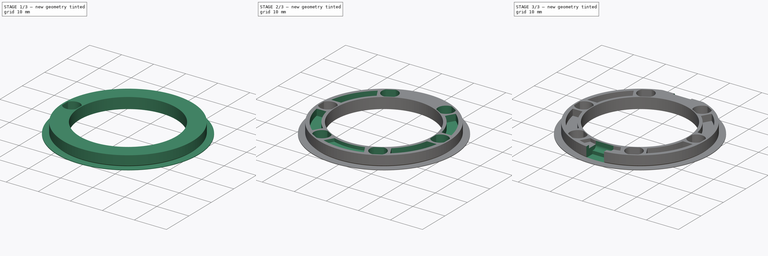
[diagram: build sequence overview — one tinted view per stage of 3, left to right]
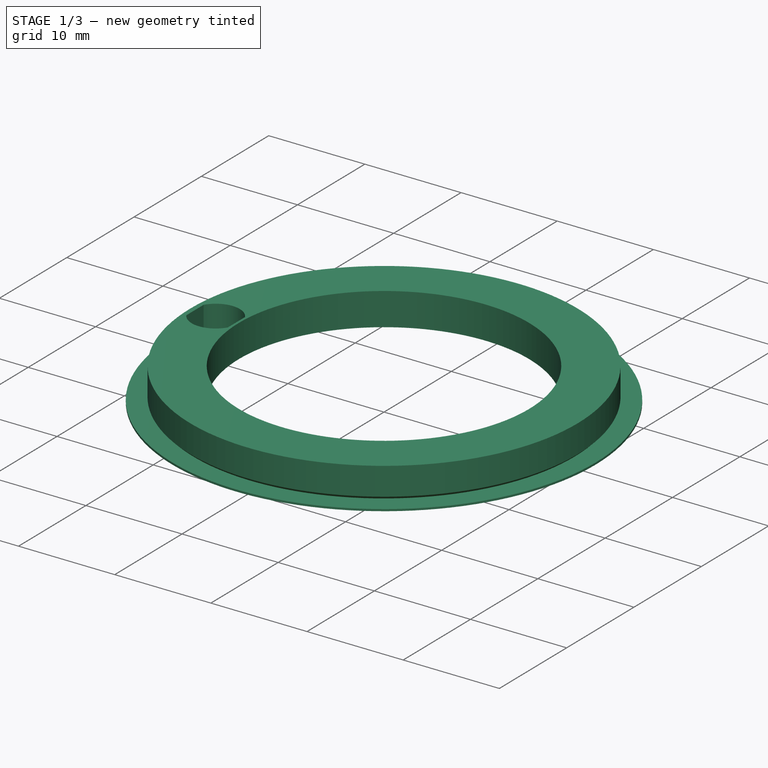
[diagram: stage 1 of 3 — iso view after this stage's code; geometry added in this stage tinted green]
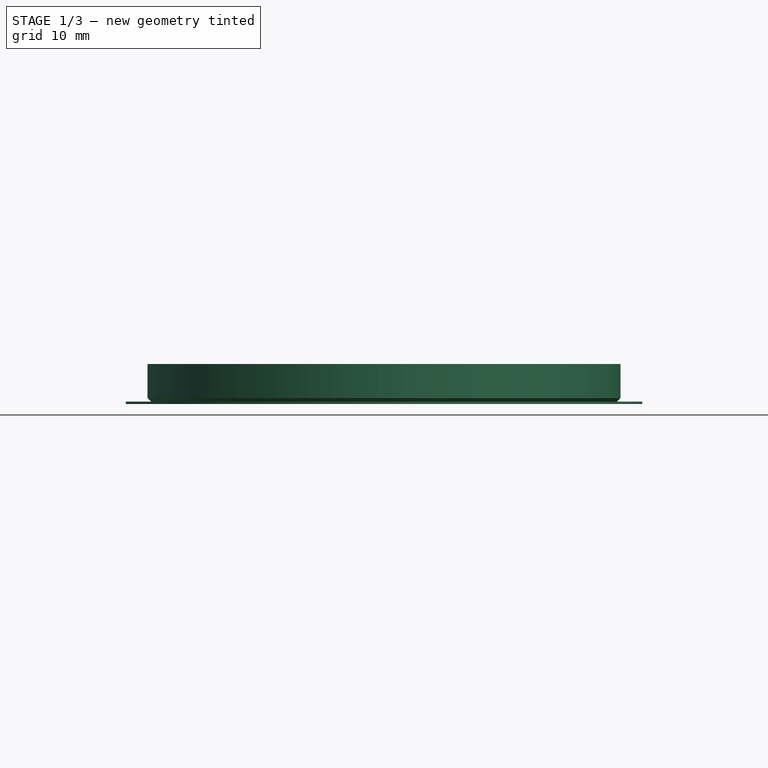
[diagram: stage 1 of 3 — front view after this stage's code; geometry added in this stage tinted green]
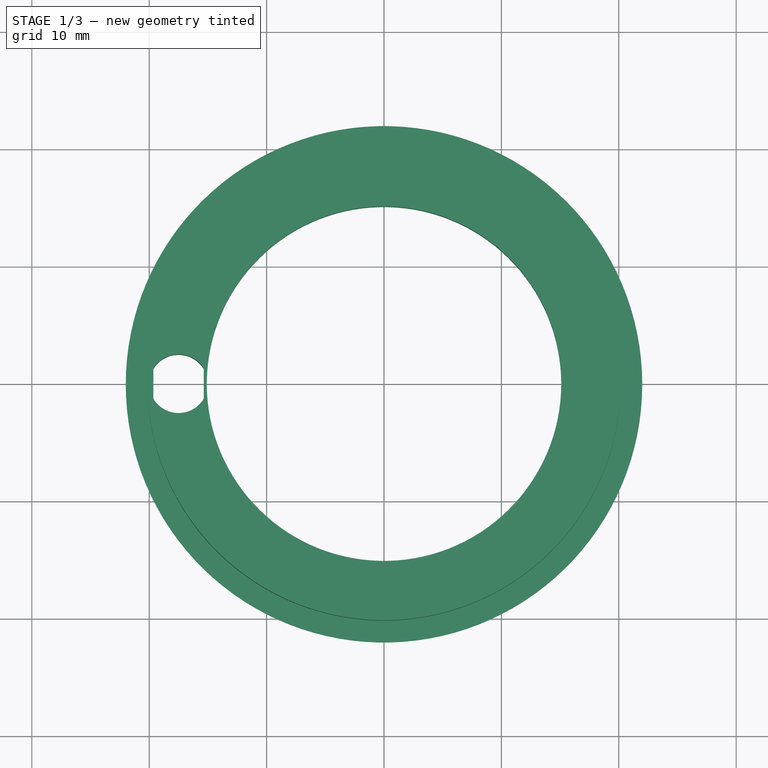
[diagram: stage 1 of 3 — top view after this stage's code; geometry added in this stage tinted green]
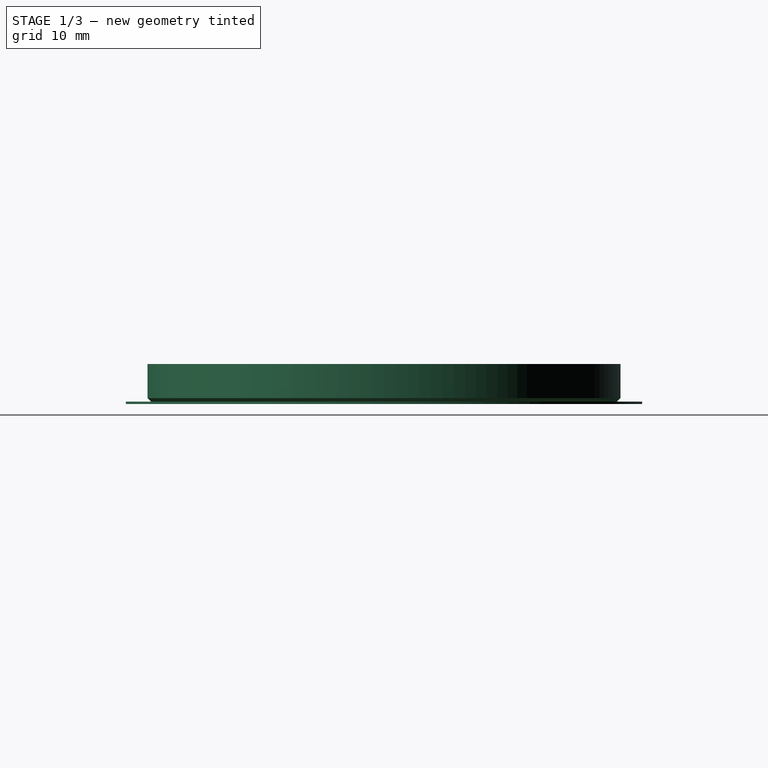
[diagram: stage 1 of 3 — right view after this stage's code; geometry added in this stage tinted green]
FCSTD DOCUMENT  (FreeCAD 0.22R37841 (Git))
Label: rotorbase
License: All rights reserved
LicenseURL: http://en.wikipedia.org/wiki/All_rights_reserved
objects: Sketcher::SketchObject×6, PartDesign::Pocket×5, PartDesign::CoordinateSystem×2, PartDesign::Revolution×1, PartDesign::PolarPattern×1, PartDesign::Body×1, App::Part×1
note: 22 computed .brp shape members not serialized (recipe doc carries the construction recipe); baked Part::Feature solids carry a one-line shape summary decoded from their .brp

FEATURE [PartDesign::CoordinateSystem] LCS_Origin
  AttacherType = Attacher::AttachEngine3D
  AttachmentSupport = -> [X_Axis]
  MapMode = 2
FEATURE [PartDesign::CoordinateSystem] LCS_Origin001
  AttacherType = Attacher::AttachEngine3D
  AttachmentSupport = -> [X_Axis001]
  MapMode = 2
FEATURE [Sketcher::SketchObject] Sketch
  AttachmentSupport = -> [XZ_Plane001]
  FullyConstrained = true
  MapMode = 5
  Placement = pos=(0,0,0) rot=(1,0,0;1.5708rad)
  sketch-geometry (8):
    g0: LineSegment StartX=0 StartY=0 StartZ=0 EndX=0 EndY=8.7 EndZ=0
    g1: LineSegment StartX=19.85 StartY=5.5 StartZ=0 EndX=22 EndY=5.5 EndZ=0
    g2: LineSegment StartX=22 StartY=5.5 StartZ=0 EndX=22 EndY=5.3 EndZ=0
    g3: LineSegment StartX=19.85 StartY=5.5 StartZ=0 EndX=20.15 EndY=5.8 EndZ=0
    g4: LineSegment StartX=20.15 StartY=8.7 StartZ=0 EndX=20.15 EndY=5.8 EndZ=0
    g5: LineSegment StartX=15.1 StartY=8.7 StartZ=0 EndX=15.1 EndY=5.3 EndZ=0
    g6: LineSegment StartX=15.1 StartY=5.3 StartZ=0 EndX=22 EndY=5.3 EndZ=0
    g7: LineSegment StartX=15.1 StartY=8.7 StartZ=0 EndX=20.15 EndY=8.7 EndZ=0
  constraints (24):
    c: Coincident(g0,g-1)
    c: PointOnObject(g0,g-2)
    c: Horizontal(g1)
    c: Coincident(g2,g1)
    c: Vertical(g2)
    c: Coincident(g3,g1)
    c: Vertical(g4)
    c: Vertical(g5)
    c: Coincident(g6,g5)
    c: Coincident(g6,g2)
    c: Horizontal(g6)
    c: Coincident(g7,g4)
    c: Horizontal(g7)
    c: DistanceX(g-1,g5) = 15.1
    c: Coincident(g3,g4)
    c: DistanceX(g-1,g3) = 20.15
    c: DistanceX(g-1,g1) = 19.85
    c: Angle(g1,g3) = 0.785398
    c: DistanceY(g-1,g1) = 5.5
    c: DistanceY(g-1,g2) = 5.3
    c: DistanceX(g-1,g2) = 22
    c: DistanceY(g1,g4) = 3.2
    c: Coincident(g7,g5)
    c: PointOnObject(g0,g7)
FEATURE [PartDesign::Revolution] Revolution
  Angle = 360
  Angle2 = 60
  Axis = (0,2e-16,1)
  Base = (0,0,0)
  Placement = pos=(0,0,0) rot=(1,0,0;1.5708rad)
  Profile = -> Sketch
  ReferenceAxis = -> Sketch [V_Axis]
  Reversed = true
  Suppressed = false
  Type = 0
FEATURE [Sketcher::SketchObject] Sketch001
  AttachmentOffset = pos=(0,0,5.3) rot=(0,0,1;0rad)
  AttachmentSupport = -> [XY_Plane001]
  FullyConstrained = true
  MapMode = 5
  Placement = pos=(0,0,5.3) rot=(0,0,1;0rad)
  sketch-geometry (5):
    g0: Circle CenterX=0 CenterY=0 CenterZ=0 NormalX=0 NormalY=0 NormalZ=1 AngleXU=0 Radius=17.5
    g1: ArcOfCircle CenterX=-17.5 CenterY=0 CenterZ=0 NormalX=0 NormalY=0 NormalZ=1 AngleXU=0 Radius=2.5 StartAngle=0.535527 EndAngle=2.60607
    g2: LineSegment StartX=-19.65 StartY=1.27574 StartZ=0 EndX=-19.65 EndY=-1.27574 EndZ=0
    g3: LineSegment StartX=-15.35 StartY=-1.27574 StartZ=0 EndX=-15.35 EndY=1.27574 EndZ=0
    g4: ArcOfCircle CenterX=-17.5 CenterY=0 CenterZ=0 NormalX=0 NormalY=0 NormalZ=1 AngleXU=0 Radius=2.5 StartAngle=3.67712 EndAngle=5.74766
  constraints (16):
    c: PointOnObject(g1,g0)
    c: PointOnObject(g1,g-1)
    c: Diameter(g0) = 35
    c: Vertical(g2)
    c: Vertical(g3)
    c: Horizontal(g2,g3)
    c: DistanceX(g2,g3) = 4.3
    c: Coincident(g4,g3)
    c: Coincident(g1,g3)
    c: Equal(g1,g4)
    c: Coincident(g1,g2)
    c: Coincident(g4,g2)
    c: Coincident(g1,g4)
    c: Radius(g1) = 2.5
    c: Coincident(g-1,g0)
    c: Distance(g-2,g3) = 15.35
FEATURE [PartDesign::Pocket] Pocket
  BaseFeature = -> Revolution
  Direction = (0,0,-1)
  Length = 5.5
  Length2 = 5
  Placement = pos=(0,0,0) rot=(1,0,0;1.5708rad)
  Profile = -> Sketch001
  ReferenceAxis = -> Sketch001 [N_Axis]
  Reversed = true
  Suppressed = false
  Type = 1
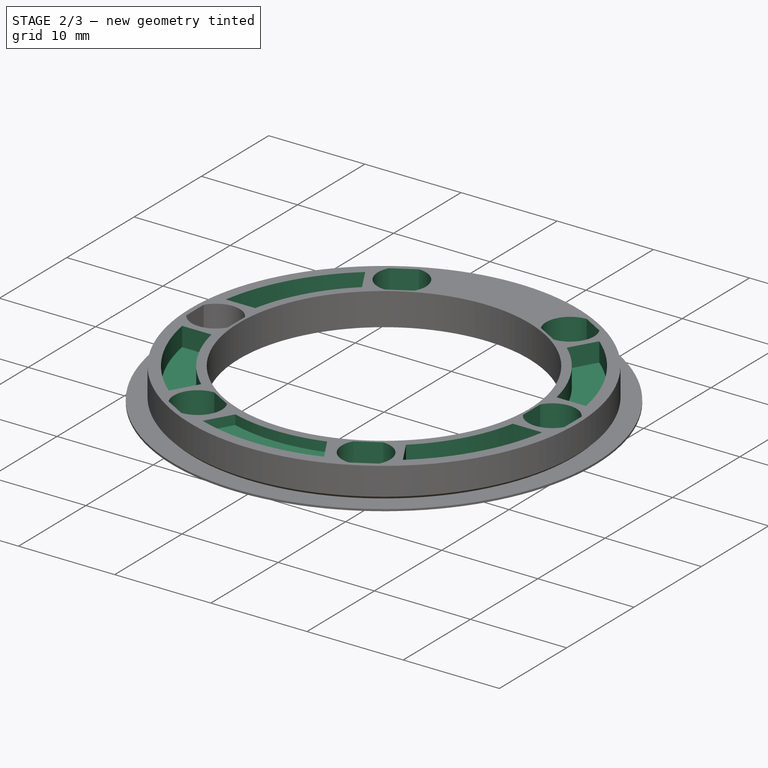
[diagram: stage 2 of 3 — iso view after this stage's code; geometry added in this stage tinted green]
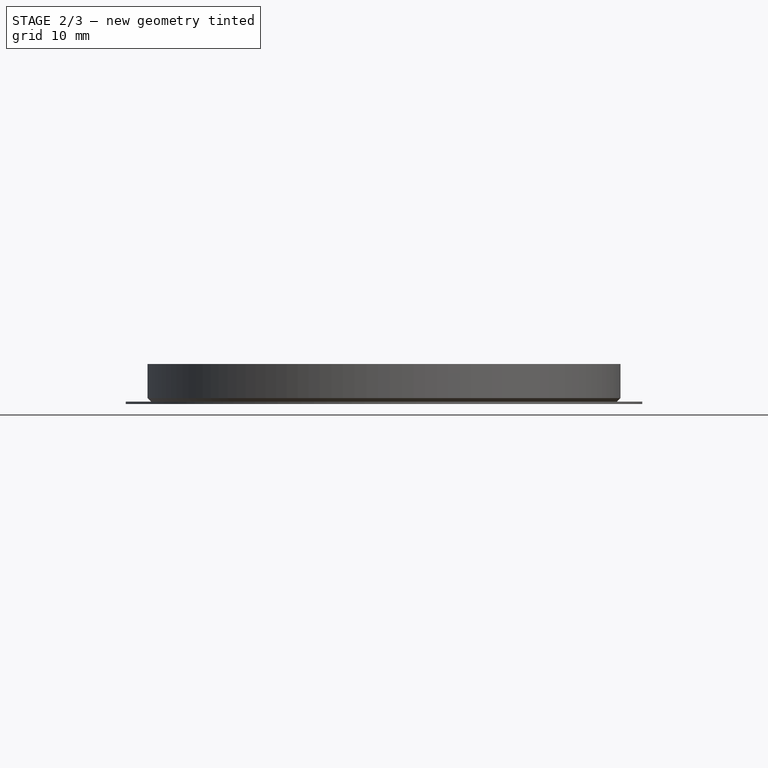
[diagram: stage 2 of 3 — front view after this stage's code; geometry added in this stage tinted green]
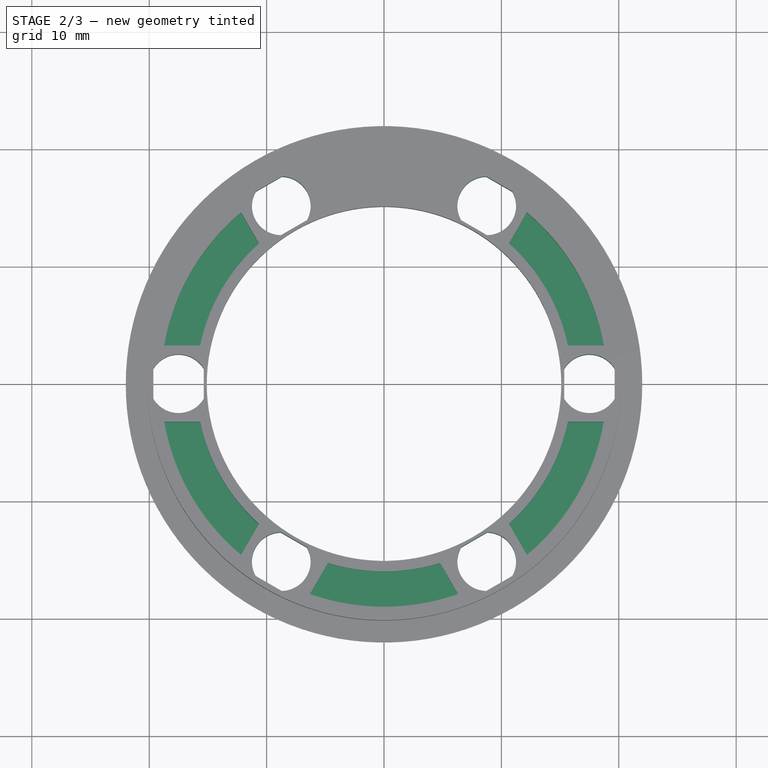
[diagram: stage 2 of 3 — top view after this stage's code; geometry added in this stage tinted green]
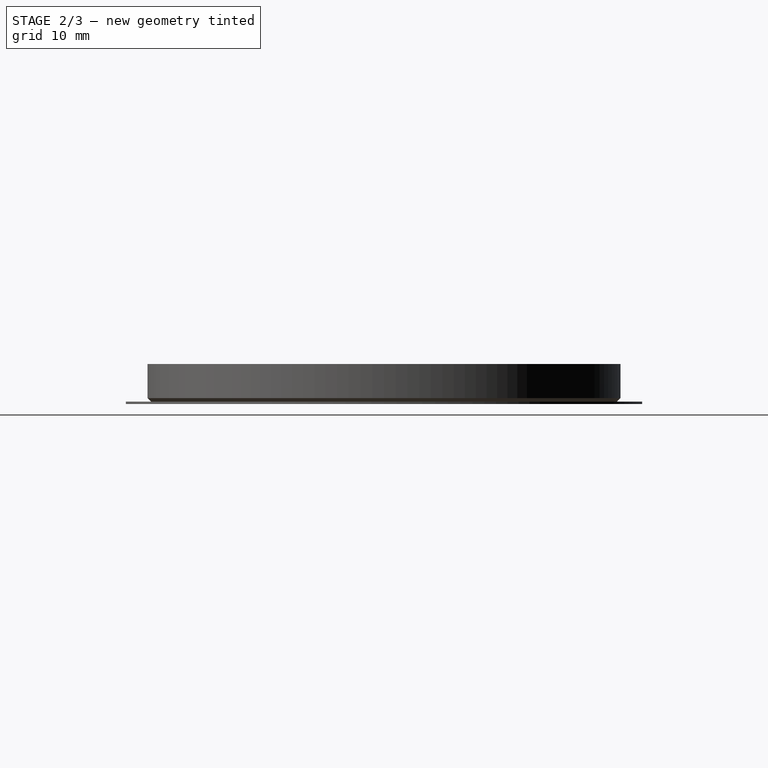
[diagram: stage 2 of 3 — right view after this stage's code; geometry added in this stage tinted green]
FEATURE [PartDesign::PolarPattern] PolarPattern
  Angle = 360
  Axis = -> Z_Axis001
  BaseFeature = -> Pocket
  Mode = 0
  Occurrences = 6
  Offset = 120
  Originals = -> [Pocket]
  Placement = pos=(0,0,0) rot=(1,0,0;1.5708rad)
  Suppressed = false
  TransformMode = 0
FEATURE [Sketcher::SketchObject] Sketch004
  AttachmentSupport = -> [YZ_Plane001]
  FullyConstrained = true
  MapMode = 5
  Placement = pos=(0,0,0) rot=(0.57735,0.57735,0.57735;2.0944rad)
  sketch-geometry (15):
    g0: LineSegment StartX=21 StartY=11 StartZ=0 EndX=18.5 EndY=11 EndZ=0
    g1: LineSegment StartX=19.25 StartY=5.5 StartZ=0 EndX=21 EndY=5.5 EndZ=0
    g2: LineSegment StartX=21 StartY=5.5 StartZ=0 EndX=21 EndY=11 EndZ=0
    g3: LineSegment StartX=18.5 StartY=11 StartZ=0 EndX=18.5 EndY=8.7 EndZ=0
    g4: ArcOfCircle CenterX=18.5 CenterY=8.2 CenterZ=0 NormalX=0 NormalY=0 NormalZ=1 AngleXU=0 Radius=0.5 StartAngle=5.17283 EndAngle=7.85398
    g5: LineSegment StartX=-20.75 StartY=11 StartZ=0 EndX=-20.75 EndY=5.5 EndZ=0
    g6: LineSegment StartX=-20.75 StartY=5.5 StartZ=0 EndX=-19 EndY=5.5 EndZ=0
    g7: LineSegment StartX=-19 StartY=5.5 StartZ=0 EndX=-17.25 EndY=5.5 EndZ=0
    g8: LineSegment StartX=-17.25 StartY=5.5 StartZ=0 EndX=-17.25 EndY=6.5 EndZ=0
    g9: LineSegment StartX=-17.25 StartY=6.5 StartZ=0 EndX=-16.75 EndY=6.5 EndZ=0
    g10: LineSegment StartX=-15.75 StartY=7.5 StartZ=0 EndX=-15.75 EndY=11 EndZ=0
    g11: ArcOfCircle CenterX=-16.75 CenterY=7.5 CenterZ=0 NormalX=0 NormalY=0 NormalZ=1 AngleXU=0 Radius=1 StartAngle=4.71239 EndAngle=6.28319
    g12: GeomPoint X=-15.75 Y=6.5 Z=0
    g13: LineSegment StartX=-20.75 StartY=11 StartZ=0 EndX=-15.75 EndY=11 EndZ=0
    g14: ArcOfCircle CenterX=19.25 CenterY=6.68789 CenterZ=0 NormalX=0 NormalY=0 NormalZ=1 AngleXU=0 Radius=1.18789 StartAngle=2.03124 EndAngle=4.71239
  constraints (43):
    c: Coincident(g1,g2)
    c: Coincident(g2,g0)
    c: Horizontal(g0)
    c: Horizontal(g1)
    c: Vertical(g2)
    c: DistanceX(g-1,g1) = 21
    c: DistanceY(g-1,g1) = 5.5
    c: DistanceY(g2,g2) = 5.5
    c: Coincident(g3,g0)
    c: Vertical(g3)
    c: Coincident(g4,g3)
    c: PointOnObject(g4,g3)
    c: Radius(g4) = 0.5
    c: Vertical(g5)
    c: Coincident(g6,g5)
    c: Horizontal(g6)
    c: Horizontal(g7)
    c: Coincident(g8,g7)
    c: Coincident(g9,g8)
    c: Horizontal(g9)
    c: Vertical(g10)
    c: Vertical(g8)
    c: PointOnObject(g12,g10)
    c: PointOnObject(g12,g9)
    c: Tangent(g10,g11) = -1.5708
    c: Tangent(g9,g11) = -1.5708
    c: Coincident(g7,g6)
    c: Equal(g6,g7)
    c: DistanceX(g6,g-1) = 19
    c: DistanceX(g10,g-1) = 15.75
    c: Horizontal(g10,g0)
    c: Horizontal(g5,g1)
    c: DistanceY(g8,g8) = 1
    c: Coincident(g13,g10)
    c: Horizontal(g13)
    c: DistanceX(g-1,g1) = 19.25
    c: Tangent(g14,g1) = -1.5708
    c: DistanceY(g-1,g3) = 8.7
    c: Tangent(g4,g14) = 1.5708
    c: DistanceX(g-1,g3) = 18.5
    c: DistanceX(g5,g7) = 3.5
    c: Radius(g11) = 1
    c: Coincident(g13,g5)
FEATURE [Sketcher::SketchObject] Sketch005
  AttachmentOffset = pos=(0,0,7.7) rot=(0,0,1;0rad)
  AttachmentSupport = -> [XY_Plane001]
  FullyConstrained = true
  MapMode = 5
  Placement = pos=(0,0,7.7) rot=(0,0,1;0rad)
  sketch-geometry (5):
    g0: ArcOfCircle CenterX=0 CenterY=0 CenterZ=0 NormalX=0 NormalY=0 NormalZ=1 AngleXU=0 Radius=16 StartAngle=4.40932 EndAngle=5.01545
    g1: ArcOfCircle CenterX=0 CenterY=0 CenterZ=0 NormalX=0 NormalY=0 NormalZ=1 AngleXU=0 Radius=19 StartAngle=4.37406 EndAngle=5.05072
    g2: LineSegment StartX=-6.30634 StartY=-17.9229 StartZ=0 EndX=-4.77516 EndY=-15.2708 EndZ=0
    g3: LineSegment StartX=4.77516 StartY=-15.2708 StartZ=0 EndX=6.30634 EndY=-17.9229 EndZ=0
    g4: LineSegment StartX=0 StartY=0 StartZ=0 EndX=-9.5 EndY=-16.4545 EndZ=0
  constraints (15):
    c: Coincident(g0,g-1)
    c: Coincident(g1,g0)
    c: Coincident(g2,g1)
    c: Coincident(g2,g0)
    c: Coincident(g3,g0)
    c: Coincident(g3,g1)
    c: Radius(g0) = 16
    c: Radius(g1) = 19
    c: Horizontal(g0,g0)
    c: Horizontal(g1,g1)
    c: Coincident(g4,g0)
    c: PointOnObject(g4,g1)
    c: Angle(g-1,g4) = 1.0472
    c: Parallel(g2,g4)
    c: Distance(g4,g2) = 3.5
FEATURE [PartDesign::Pocket] Pocket004
  BaseFeature = -> PolarPattern
  Direction = (0,0,-1)
  Length = 5
  Length2 = 5
  Placement = pos=(0,0,0) rot=(1,0,0;1.5708rad)
  Profile = -> Sketch005
  ReferenceAxis = -> Sketch005 [N_Axis]
  Reversed = true
  Suppressed = false
  Type = 1
FEATURE [Sketcher::SketchObject] Sketch006
  AttachmentOffset = pos=(0,0,6.7) rot=(0,0,1;0rad)
  AttachmentSupport = -> [XY_Plane001]
  FullyConstrained = true
  MapMode = 5
  Placement = pos=(0,0,6.7) rot=(0,0,1;0rad)
  sketch-geometry (19):
    g0: ArcOfCircle CenterX=0 CenterY=0 CenterZ=0 NormalX=0 NormalY=0 NormalZ=1 AngleXU=0 Radius=16 StartAngle=2.29894 EndAngle=2.93704
    g1: ArcOfCircle CenterX=0 CenterY=0 CenterZ=0 NormalX=0 NormalY=0 NormalZ=1 AngleXU=0 Radius=16 StartAngle=3.34614 EndAngle=3.98424
    g2: ArcOfCircle CenterX=0 CenterY=0 CenterZ=0 NormalX=0 NormalY=0 NormalZ=1 AngleXU=0 Radius=19 StartAngle=2.26629 EndAngle=2.96969
    g3: ArcOfCircle CenterX=0 CenterY=0 CenterZ=0 NormalX=0 NormalY=0 NormalZ=1 AngleXU=0 Radius=19 StartAngle=3.31349 EndAngle=4.01689
    g4: Circle CenterX=0 CenterY=0 CenterZ=0 NormalX=0 NormalY=0 NormalZ=1 AngleXU=0 Radius=19
    g5: Circle CenterX=0 CenterY=0 CenterZ=0 NormalX=0 NormalY=0 NormalZ=1 AngleXU=0 Radius=16
    g6: LineSegment StartX=0 StartY=0 StartZ=0 EndX=-9.5 EndY=16.4545 EndZ=0
    g7: LineSegment StartX=-12.1746 StartY=14.587 StartZ=0 EndX=-10.6478 EndY=11.9425 EndZ=0
    g8: LineSegment StartX=-15.6664 StartY=3.25 StartZ=0 EndX=-18.72 EndY=3.25 EndZ=0
    g9: LineSegment StartX=-18.72 StartY=-3.25 StartZ=0 EndX=-15.6664 EndY=-3.25 EndZ=0
    g10: LineSegment StartX=-12.1746 StartY=-14.587 StartZ=0 EndX=-10.6478 EndY=-11.9425 EndZ=0
    g11: ArcOfCircle CenterX=0 CenterY=0 CenterZ=0 NormalX=0 NormalY=0 NormalZ=1 AngleXU=0 Radius=16 StartAngle=5.44054 EndAngle=6.07864
    g12: ArcOfCircle CenterX=0 CenterY=0 CenterZ=0 NormalX=0 NormalY=0 NormalZ=1 AngleXU=0 Radius=19 StartAngle=5.40789 EndAngle=6.11129
    g13: ArcOfCircle CenterX=0 CenterY=0 CenterZ=0 NormalX=0 NormalY=0 NormalZ=1 AngleXU=0 Radius=19 StartAngle=0.171898 EndAngle=0.8753
    g14: ArcOfCircle CenterX=0 CenterY=0 CenterZ=0 NormalX=0 NormalY=0 NormalZ=1 AngleXU=0 Radius=16 StartAngle=0.204548 EndAngle=0.842649
    g15: LineSegment StartX=15.6664 StartY=-3.25 StartZ=0 EndX=18.72 EndY=-3.25 EndZ=0
    g16: LineSegment StartX=15.6664 StartY=3.25 StartZ=0 EndX=18.72 EndY=3.25 EndZ=0
    g17: LineSegment StartX=10.6478 StartY=-11.9425 StartZ=0 EndX=12.1746 EndY=-14.587 EndZ=0
    g18: LineSegment StartX=10.6478 StartY=11.9425 StartZ=0 EndX=12.1746 EndY=14.587 EndZ=0
  constraints (55):
    c: Coincident(g0,g-1)
    c: Coincident(g1,g0)
    c: Coincident(g2,g0)
    c: Coincident(g3,g0)
    c: Coincident(g4,g0)
    c: Coincident(g5,g0)
    c: PointOnObject(g0,g5)
    c: PointOnObject(g1,g5)
    c: PointOnObject(g3,g4)
    c: PointOnObject(g2,g4)
    c: Coincident(g6,g0)
    c: PointOnObject(g6,g4)
    c: Angle(g-1,g6) = 2.0944
    c: Coincident(g7,g2)
    c: Coincident(g7,g0)
    c: Coincident(g8,g0)
    c: Coincident(g8,g2)
    c: Horizontal(g8)
    c: Coincident(g9,g3)
    c: Coincident(g9,g1)
    c: Horizontal(g9)
    c: Vertical(g2,g3)
    c: DistanceY(g3,g2) = 6.5
    c: Parallel(g7,g6)
    c: Coincident(g10,g3)
    c: Coincident(g10,g1)
    c: Vertical(g0,g1)
    c: Vertical(g2,g3)
    c: Diameter(g5) = 32
    c: Diameter(g4) = 38
    c: Coincident(g11,g0)
    c: PointOnObject(g11,g5)
    c: Coincident(g12,g0)
    c: PointOnObject(g12,g4)
    c: Coincident(g13,g0)
    c: PointOnObject(g13,g4)
    c: Coincident(g14,g0)
    c: PointOnObject(g14,g5)
    c: Horizontal(g2,g13)
    c: Horizontal(g0,g14)
    c: Coincident(g15,g11)
    c: Coincident(g15,g12)
    c: Horizontal(g15)
    c: Coincident(g16,g14)
    c: Coincident(g16,g13)
    c: Horizontal(g16)
    c: Horizontal(g14,g0)
    c: Horizontal(g1,g11)
    c: Horizontal(g1,g11)
    c: Horizontal(g12,g3)
    c: Coincident(g17,g11)
    c: Coincident(g17,g12)
    c: Coincident(g18,g14)
    c: Coincident(g18,g13)
    c: Distance(g2,g6) = 3.25
FEATURE [PartDesign::Pocket] Pocket005
  BaseFeature = -> Pocket004
  Direction = (0,0,-1)
  Length = 5
  Length2 = 5
  Placement = pos=(0,0,0) rot=(1,0,0;1.5708rad)
  Profile = -> Sketch006
  ReferenceAxis = -> Sketch006 [N_Axis]
  Reversed = true
  Suppressed = false
  Type = 1
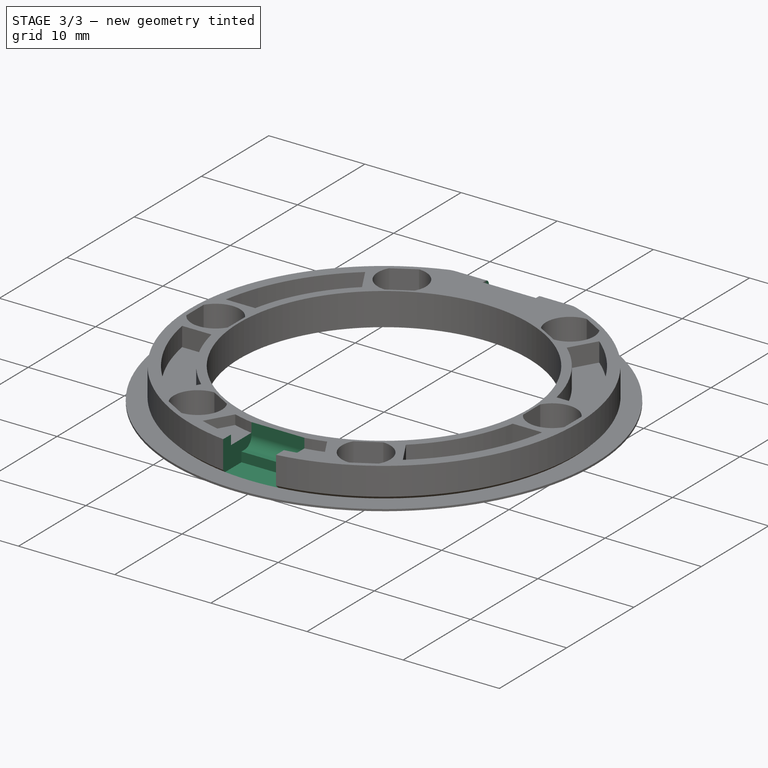
[diagram: stage 3 of 3 — iso view after this stage's code; geometry added in this stage tinted green]
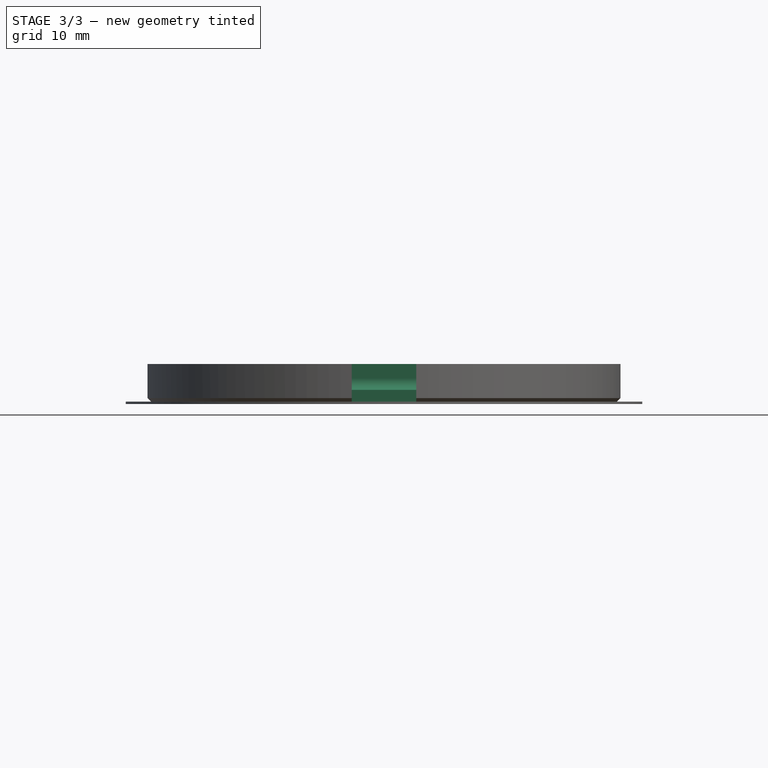
[diagram: stage 3 of 3 — front view after this stage's code; geometry added in this stage tinted green]
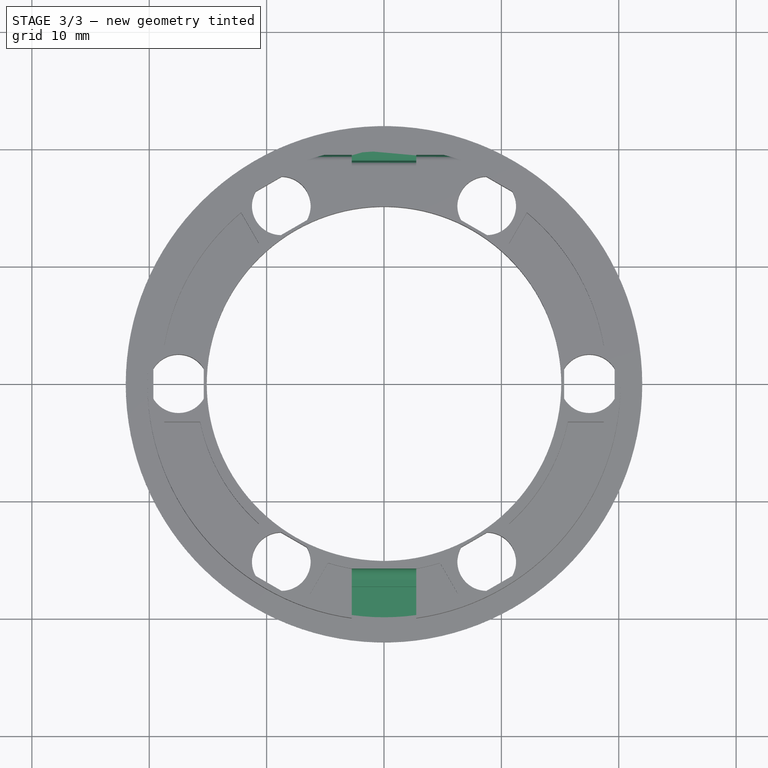
[diagram: stage 3 of 3 — top view after this stage's code; geometry added in this stage tinted green]
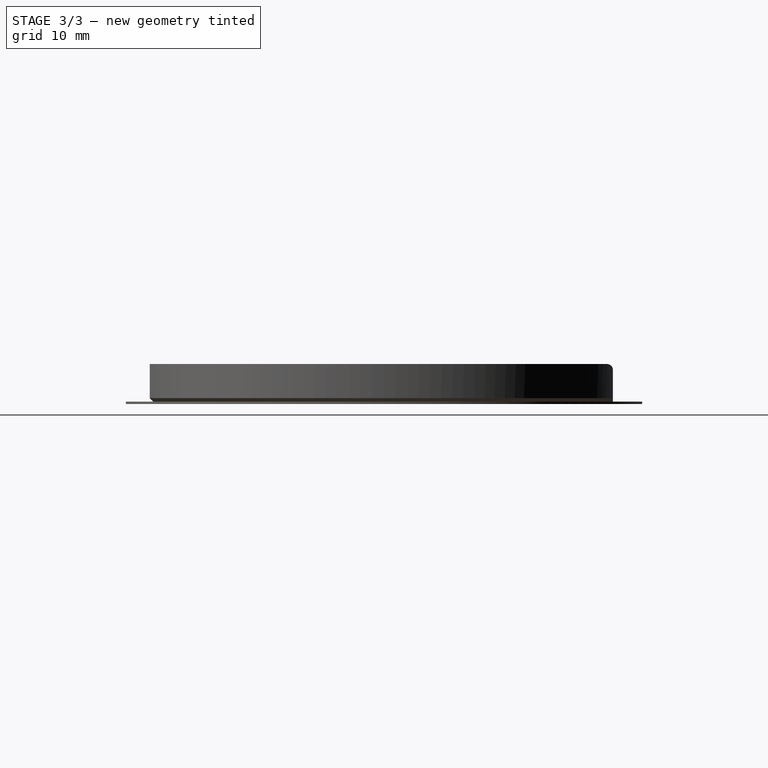
[diagram: stage 3 of 3 — right view after this stage's code; geometry added in this stage tinted green]
FEATURE [Sketcher::SketchObject] Sketch008
  AttachmentSupport = -> [YZ_Plane001]
  FullyConstrained = true
  MapMode = 5
  Placement = pos=(0,0,0) rot=(0.57735,0.57735,0.57735;2.0944rad)
  sketch-geometry (6):
    g0: LineSegment StartX=19 StartY=10 StartZ=0 EndX=19 EndY=8.7 EndZ=0
    g1: LineSegment StartX=19 StartY=10 StartZ=0 EndX=20.5 EndY=10 EndZ=0
    g2: LineSegment StartX=20.5 StartY=10 StartZ=0 EndX=20.5 EndY=5.5 EndZ=0
    g3: LineSegment StartX=20.5 StartY=5.5 StartZ=0 EndX=19.5 EndY=5.5 EndZ=0
    g4: ArcOfCircle CenterX=19 CenterY=8.2 CenterZ=0 NormalX=0 NormalY=0 NormalZ=1 AngleXU=0 Radius=0.5 StartAngle=0 EndAngle=1.5708
    g5: LineSegment StartX=19.5 StartY=8.2 StartZ=0 EndX=19.5 EndY=5.5 EndZ=0
  constraints (18):
    c: Vertical(g0)
    c: Coincident(g1,g0)
    c: Horizontal(g1)
    c: Coincident(g2,g1)
    c: Vertical(g2)
    c: Coincident(g3,g2)
    c: Horizontal(g3)
    c: Coincident(g4,g0)
    c: Vertical(g5)
    c: Tangent(g5,g4) = 1.5708
    c: Vertical(g4,g0)
    c: Coincident(g5,g3)
    c: DistanceX(g-1,g3) = 19.5
    c: Radius(g4) = 0.5
    c: DistanceY(g-1,g0) = 8.7
    c: DistanceY(g-1,g3) = 5.5
    c: DistanceX(g3,g3) = 1
    c: DistanceY(g-1,g0) = 10
FEATURE [PartDesign::Pocket] Pocket006
  BaseFeature = -> Pocket005
  Direction = (-1,0,0)
  Length = 5
  Length2 = 5
  Midplane = true
  Placement = pos=(0,0,0) rot=(1,0,0;1.5708rad)
  Profile = -> Sketch008
  ReferenceAxis = -> Sketch008 [N_Axis]
  Suppressed = false
  Type = 1
FEATURE [PartDesign::Pocket] Pocket007
  BaseFeature = -> Pocket006
  Direction = (-1,0,0)
  Length = 5.5
  Length2 = 5
  Midplane = true
  Placement = pos=(0,0,0) rot=(1,0,0;1.5708rad)
  Profile = -> Sketch004
  ReferenceAxis = -> Sketch004 [N_Axis]
  Suppressed = false
  Type = 0
FEATURE [PartDesign::Body] Body
  AllowCompound = false
  Group = -> [LCS_Origin001,Sketch,Revolution,Sketch001,Pocket,PolarPattern,Sketch004,Sketch005,Pocket004,Sketch006,Pocket005,Sketch008,Pocket006,Pocket007]
  Origin = -> Origin001
  Tip = -> Pocket007
FEATURE [App::Part] Part
  Group = -> [LCS_Origin,Body]
  Origin = -> Origin
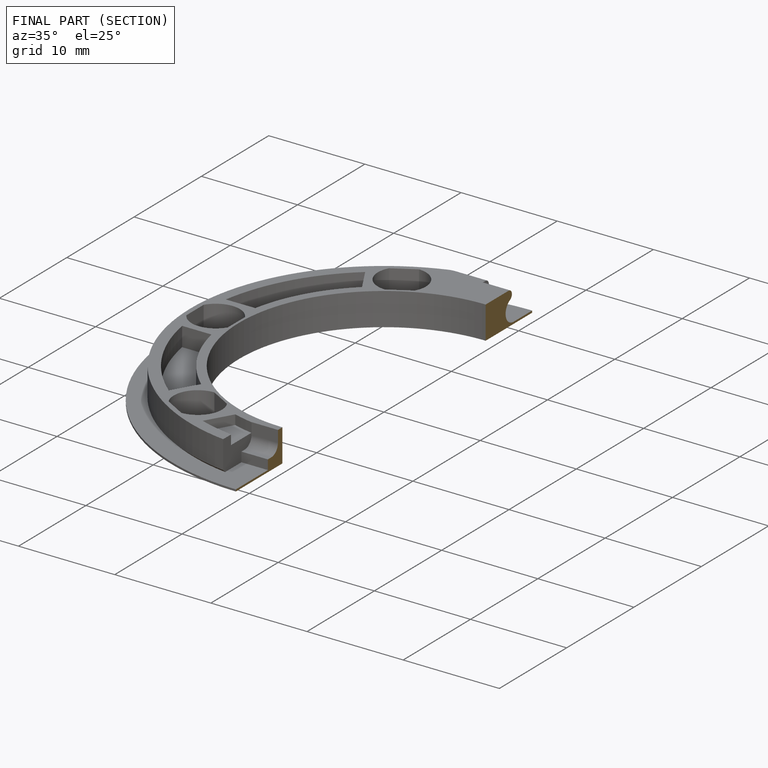
[diagram: finished part — half-section view (interior)]
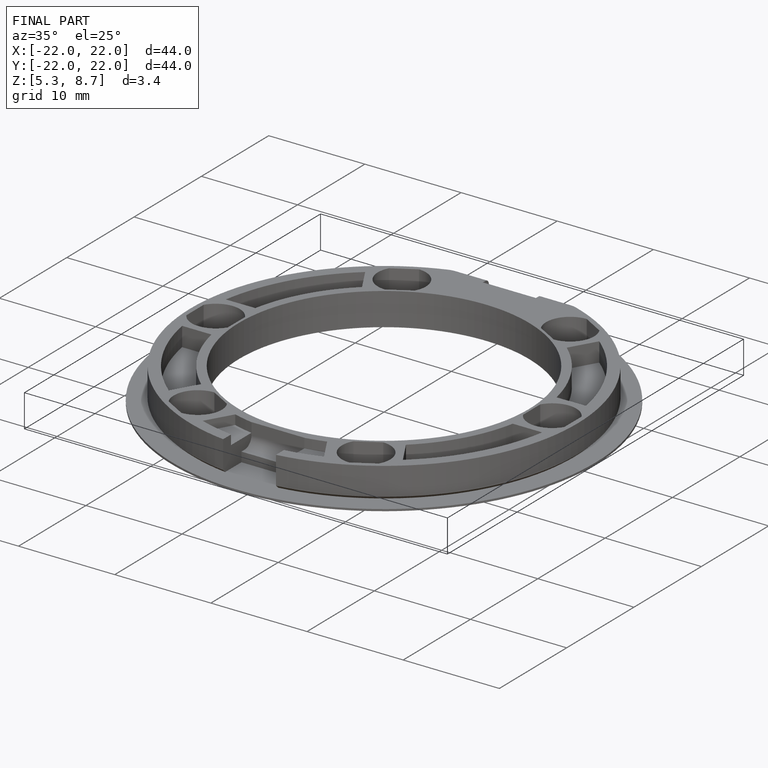
[diagram: finished part — iso view with bounding-box wireframe]
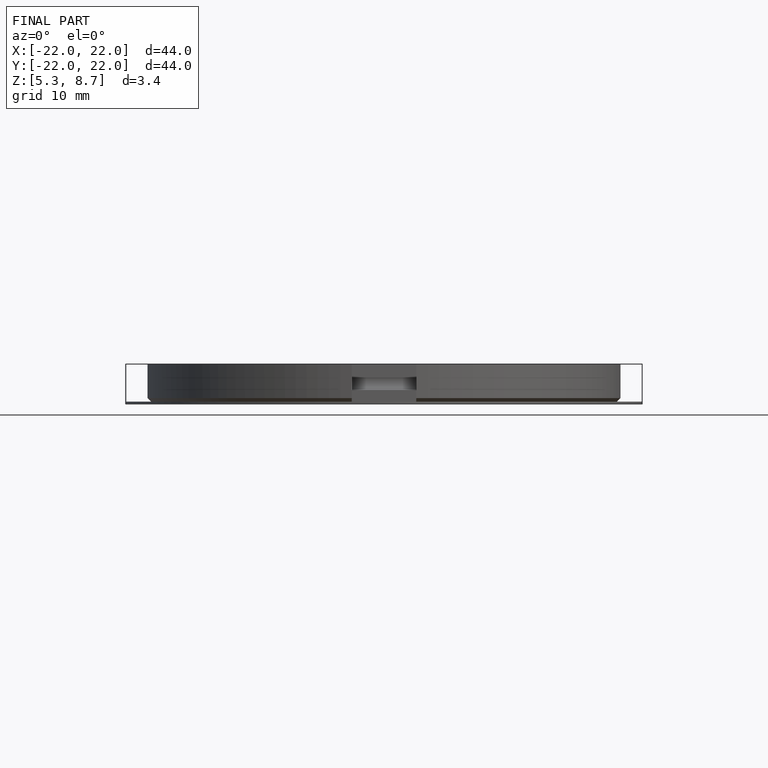
[diagram: finished part — front view with bounding-box wireframe]
